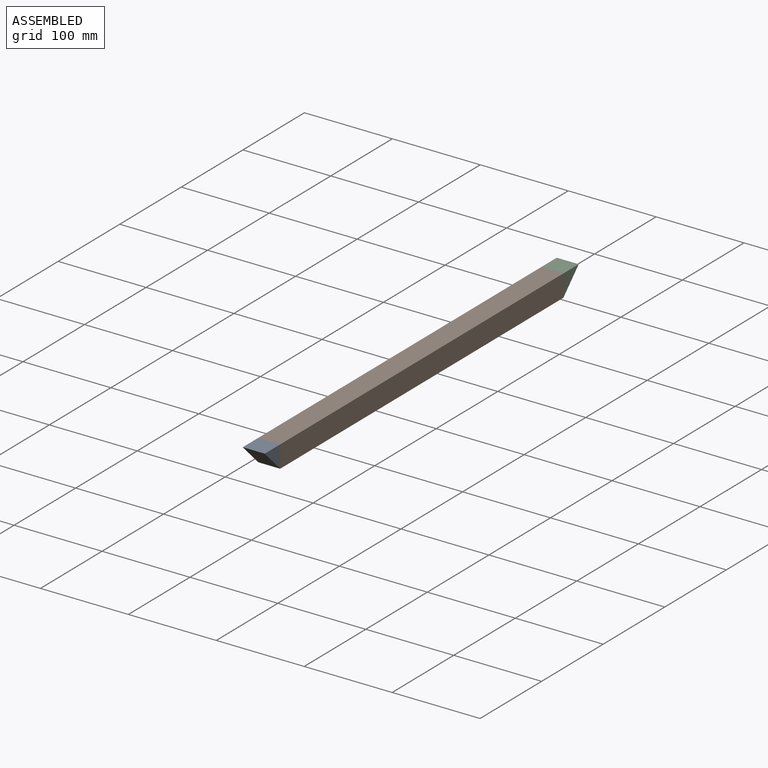
[diagram: assembled view]
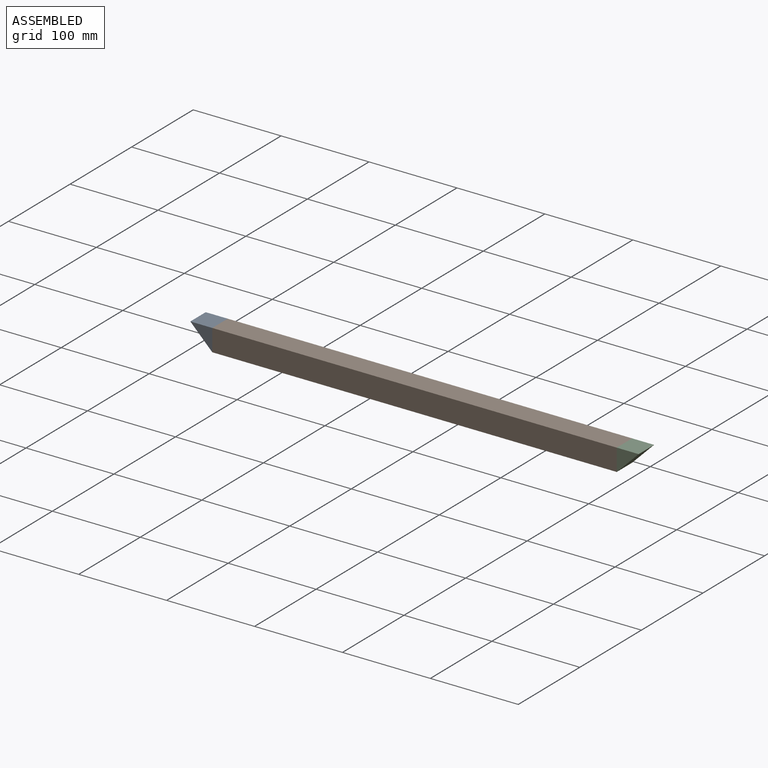
[diagram: assembled view, second angle]
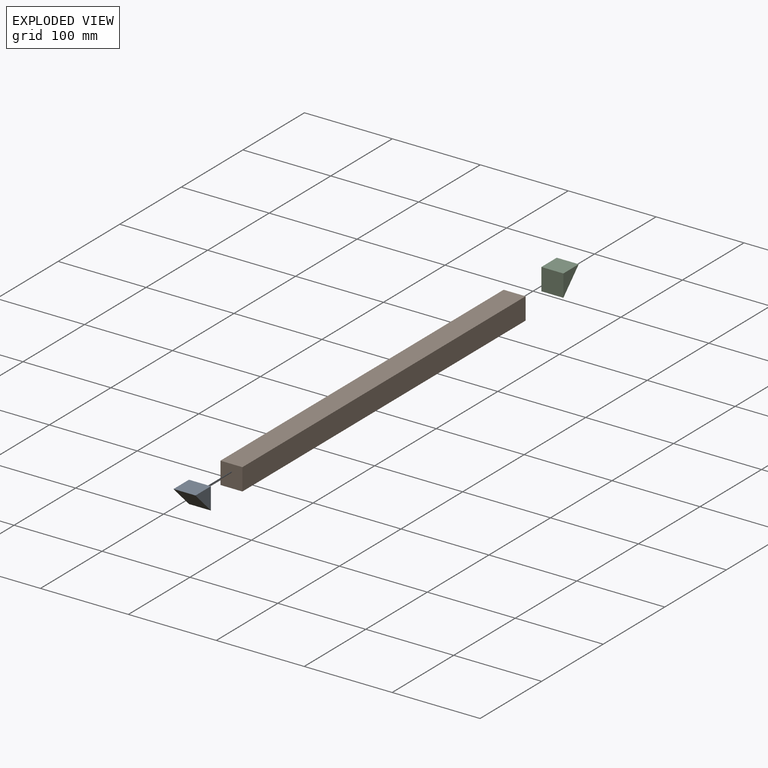
[diagram: exploded view]
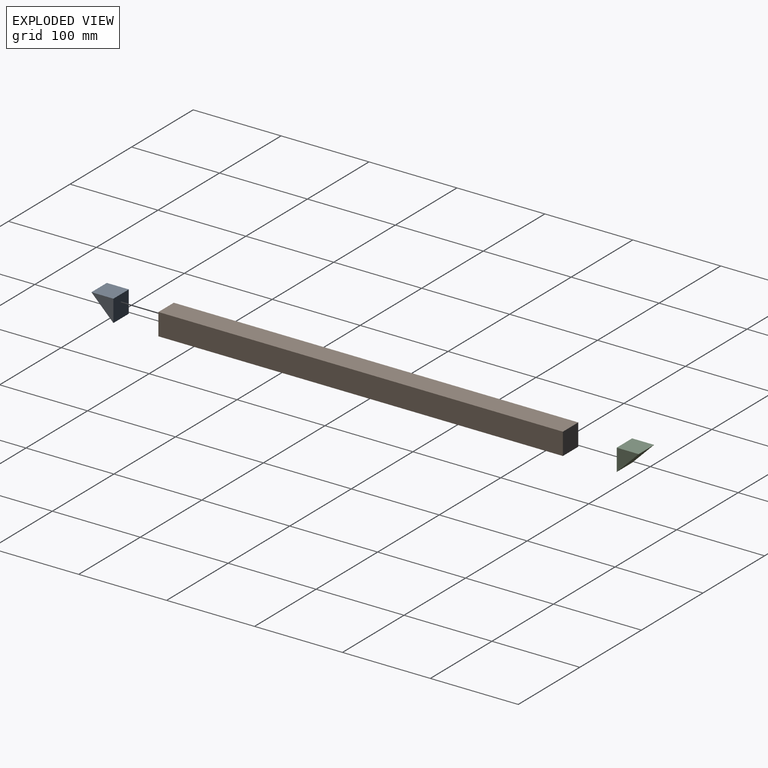
[diagram: exploded view, second angle]
ASSEMBLY  parts=3 mates=2
PART A: 5 faces, bbox 25x25x25 mm
  f0: plane 25x25mm, normal (-1,0,0), area 312.5mm2, adj f2,f3,f4
  f1: plane 25x25mm, normal (1,0,0), area 312.5mm2, adj f2,f3,f4
  f2: plane 25x25mm, normal (0,0,1), area 625mm2, adj f0,f1,f3,f4
  f3: plane 25x25mm, normal (0,1,0), area 625mm2, adj f0,f1,f2,f4
  f4: plane 25x25mm, normal (0,-0.71,-0.71), area 883.9mm2, adj f0,f1,f2,f3
PART B: 6 faces, bbox 25x460x25 mm
  f0: plane 460x25mm, normal (0,0,1), area 11500mm2, adj f1,f3,f4,f5
  f1: plane 460x25mm, normal (-1,0,0), area 11500mm2, adj f0,f2,f4,f5
  f2: plane 460x25mm, normal (0,0,-1), area 11500mm2, adj f1,f3,f4,f5
  f3: plane 460x25mm, normal (1,0,0), area 11500mm2, adj f0,f2,f4,f5
  f4: plane 25x25mm, normal (0,-1,0), area 625mm2, adj f0,f1,f2,f3
  f5: plane 25x25mm, normal (0,1,0), area 625mm2, adj f0,f1,f2,f3
PART C: same geometry as A
PLACE A t=(-171.4,-369.31,-53.03)mm
PLACE B t=(-171.4,90.69,-53.03)mm
PLACE C rot(axis=(0,0,1),180deg) t=(-171.4,90.69,-53.03)mm
MATE fastened A.f3 <-> B.f4  axis (0,1,0) through (-171.4,-369.31,-53.03)mm
MATE fastened C.f3 <-> B.f5  axis (0,-1,0) through (-171.4,90.69,-53.03)mm
